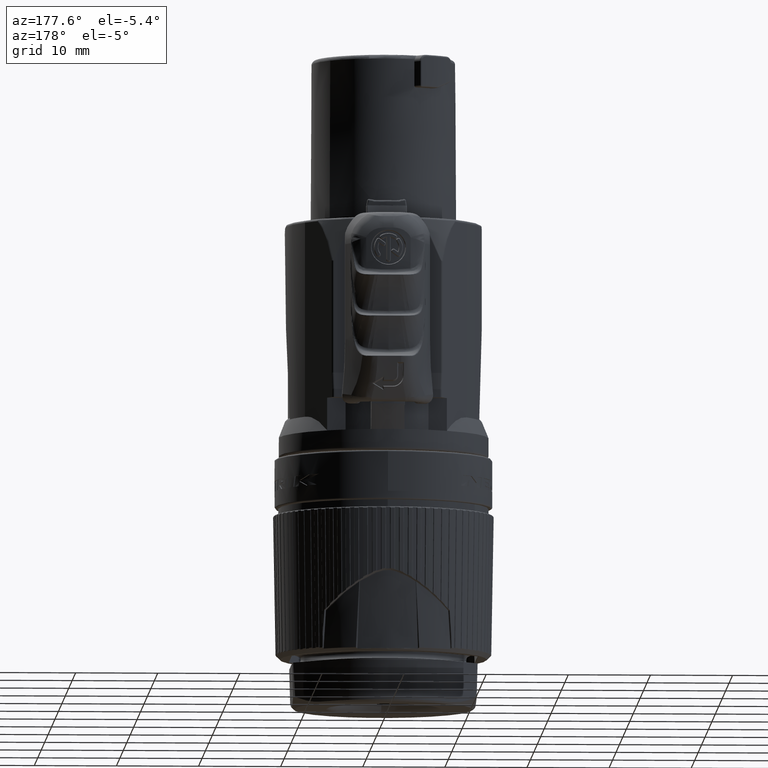
[diagram: clean part render]
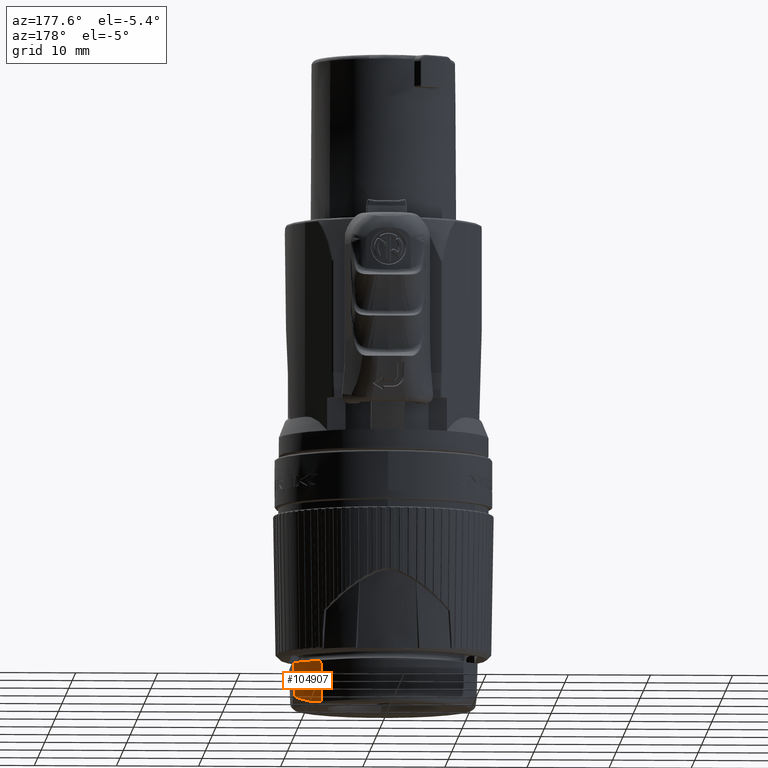
[diagram: same view with one face highlighted and labeled with its STEP entity id]
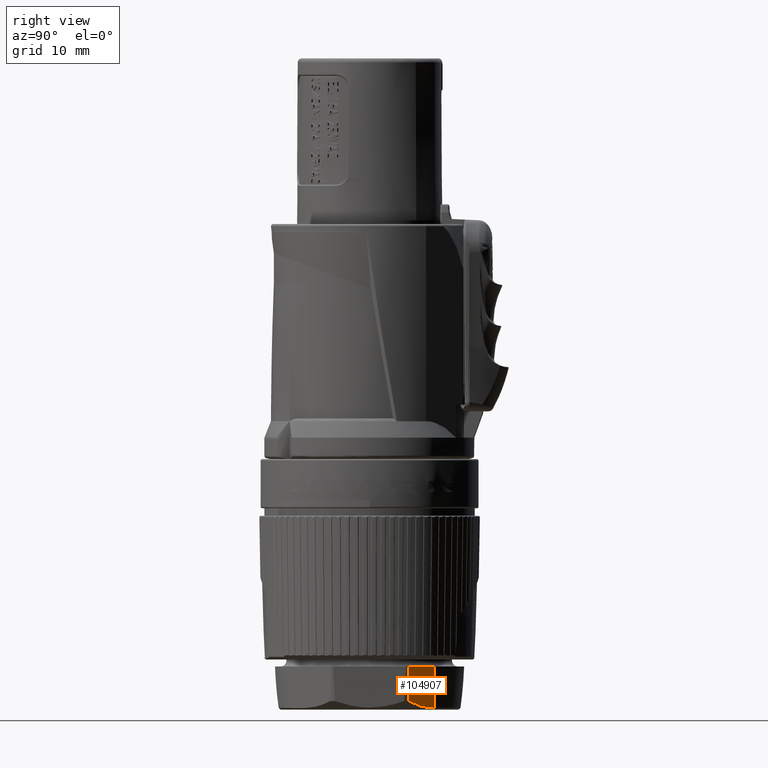
[diagram: same view with one face highlighted and labeled with its STEP entity id]
A machine part, auxiliary view. The second image highlights one B-rep face of the part: STEP entity #104907.
A second angle (right view) of the same face is appended — the face is thin or edge-on in the first view.
In plain terms, the highlighted planar face has unit normal (0.7076, 0.7062, -0.0262).
Its self-contained STEP definition (entity closure, byte-faithful):
#38614=CARTESIAN_POINT('',(7.953803166096E0,7.938380441168E0,-1.055E1));
#38637=DIRECTION('',(-7.064202298483E-1,7.077926665776E-1,0.E0));
#38638=VECTOR('',#38637,4.564768095785E0);
#38639=CARTESIAN_POINT('',(1.117844769352E1,4.707471058345E0,-1.055E1));
#38640=LINE('',#38639,#38638);
#38853=CARTESIAN_POINT('',(1.094535722945E1,4.785165680831E0,
-1.475434574947E1));
#38854=CARTESIAN_POINT('',(1.067378819956E1,5.052000805689E0,
-1.489628605070E1));
#38855=CARTESIAN_POINT('',(1.013903160143E1,5.578622225585E0,
-1.514377682747E1));
#38856=CARTESIAN_POINT('',(9.366425453317E0,6.343075460752E0,
-1.540421202645E1));
#38857=CARTESIAN_POINT('',(8.610482493933E0,7.094715421056E0,
-1.555991437479E1));
#38858=CARTESIAN_POINT('',(8.109424212293E0,7.595460602894E0,
-1.559462198747E1));
#38859=CARTESIAN_POINT('',(7.860305116840E0,7.845063688163E0,
-1.559462198747E1));
#38861=CARTESIAN_POINT('',(1.117844769352E1,4.707471058345E0,-1.055E1));
#38862=CARTESIAN_POINT('',(1.115245863707E1,4.715978605876E0,
-1.102296253662E1));
#38863=CARTESIAN_POINT('',(1.110054427459E1,4.733073476650E0,
-1.196501234922E1));
#38864=CARTESIAN_POINT('',(1.102285406631E1,4.758965642363E0,
-1.336644517397E1));
#38865=CARTESIAN_POINT('',(1.097117216804E1,4.776401878061E0,
-1.429300255712E1));
#38866=CARTESIAN_POINT('',(1.094535722945E1,4.785165680831E0,
-1.475434574947E1));
#38868=CARTESIAN_POINT('',(7.860305116840E0,7.845063688163E0,
-1.559462198747E1));
#38883=DIRECTION('',(-1.852785204568E-2,-1.849192584039E-2,-9.996573249756E-1));
#38884=VECTOR('',#38883,5.046351246008E0);
#38885=CARTESIAN_POINT('',(7.953803166096E0,7.938380441168E0,-1.055E1));
#38886=LINE('',#38885,#38884);
#39947=VERTEX_POINT('',#38614);
#39951=VERTEX_POINT('',#38868);
#39963=CARTESIAN_POINT('',(1.117844769352E1,4.707471058345E0,-1.055E1));
#39964=VERTEX_POINT('',#39963);
#39977=VERTEX_POINT('',#38853);
#104895=CARTESIAN_POINT('',(1.088670379948E1,4.805172253141E0,-1.58E1));
#104896=DIRECTION('',(7.075501237083E-1,7.061781572788E-1,-2.617694830787E-2));
#104897=DIRECTION('',(-7.064202298483E-1,7.077926665776E-1,0.E0));
#104898=AXIS2_PLACEMENT_3D('',#104895,#104896,#104897);
#104899=PLANE('',#104898);
#104900=ORIENTED_EDGE('',*,*,#104828,.F.);
#104901=ORIENTED_EDGE('',*,*,#104890,.F.);
#104902=ORIENTED_EDGE('',*,*,#104579,.T.);
#104904=ORIENTED_EDGE('',*,*,#104903,.T.);
#104905=EDGE_LOOP('',(#104900,#104901,#104902,#104904));
#104906=FACE_OUTER_BOUND('',#104905,.F.);
#104907=ADVANCED_FACE('',(#104906),#104899,.T.);
#38860=B_SPLINE_CURVE_WITH_KNOTS('',3,(#38853,#38854,#38855,#38856,#38857,
#38858,#38859),.UNSPECIFIED.,.F.,.F.,(4,1,1,1,4),(0.E0,2.5E-1,5.E-1,7.5E-1,
1.E0),.UNSPECIFIED.);
#38867=B_SPLINE_CURVE_WITH_KNOTS('',3,(#38861,#38862,#38863,#38864,#38865,
#38866),.UNSPECIFIED.,.F.,.F.,(4,1,1,4),(0.E0,3.333333333333E-1,
6.666666666667E-1,1.E0),.UNSPECIFIED.);
#104579=EDGE_CURVE('',#39964,#39947,#38640,.T.);
#104828=EDGE_CURVE('',#39977,#39951,#38860,.T.);
#104890=EDGE_CURVE('',#39964,#39977,#38867,.T.);
#104903=EDGE_CURVE('',#39947,#39951,#38886,.T.);